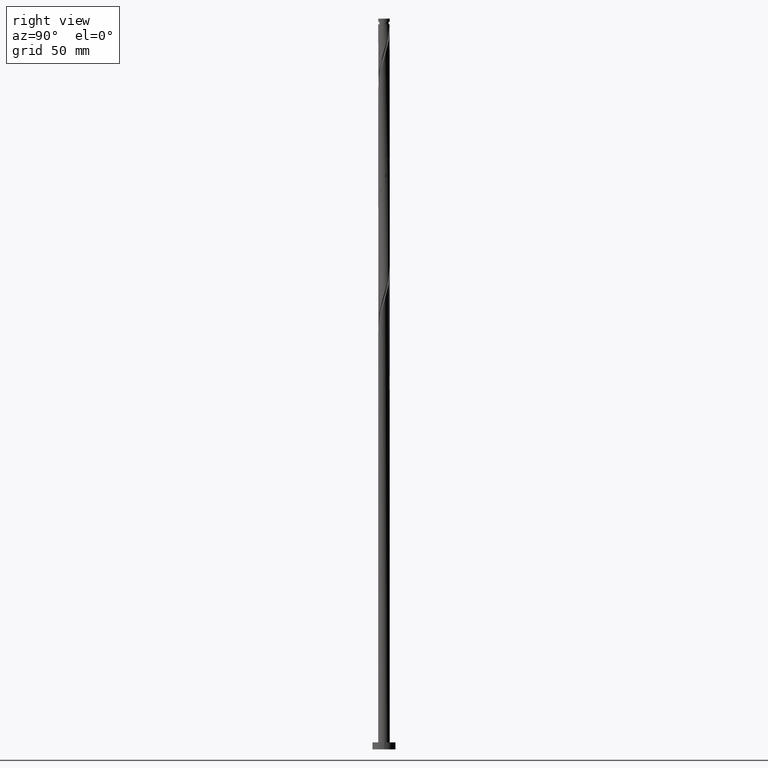
[diagram: clean part render]
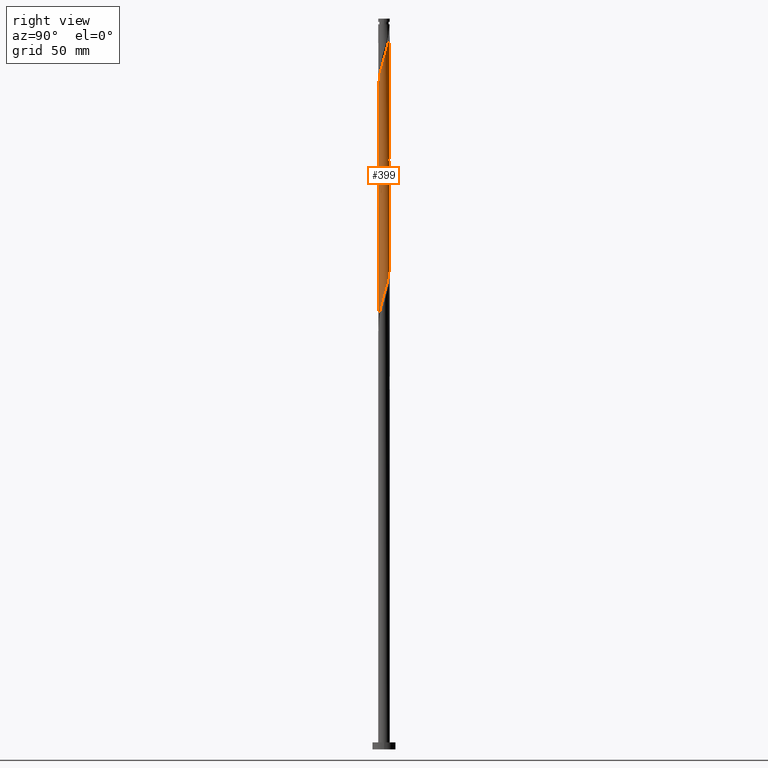
[diagram: same view with one face highlighted and labeled with its STEP entity id]
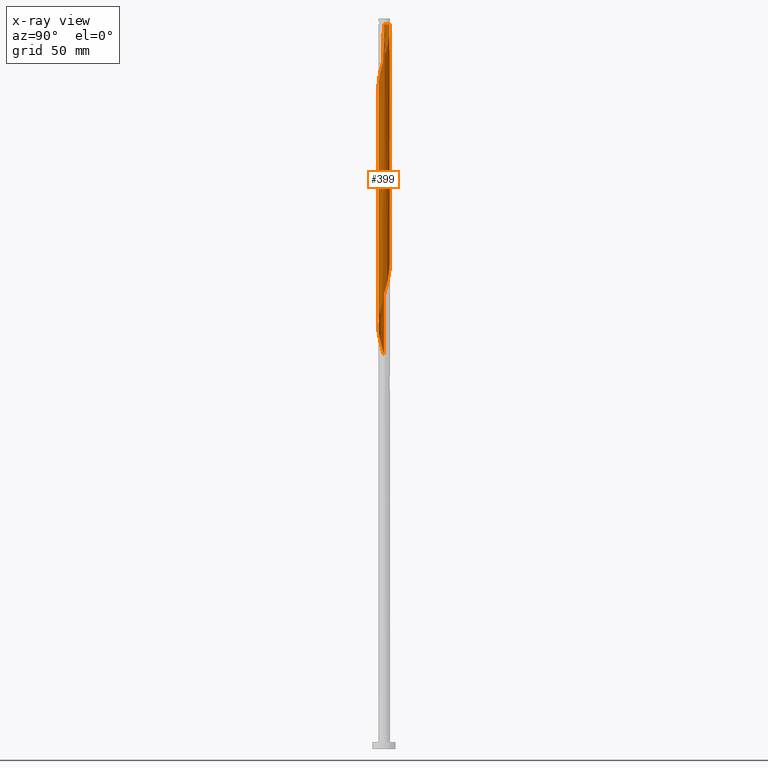
[diagram: x-ray of the same camera — body ghosted, the highlighted face saturated]
A machine part, right view. The second image highlights one B-rep face of the part: STEP entity #399.
The next image is the same camera in x-ray: the body ghosted, the highlighted face saturated — about 0% of this face is hidden behind the body in this view.
In plain terms, the highlighted cylindrical surface (bore or boss wall) has radius 2.5 mm, axis along (-0, -0, -1).
Its self-contained STEP definition (entity closure, byte-faithful):
#7 = CARTESIAN_POINT ( 'NONE',  ( 2.500000000000000000, 3.061616997868383141E-16, 315.0000000000000000 ) ) ;
#11 = CARTESIAN_POINT ( 'NONE',  ( -2.277870617955584098, 1.030196800545722269, 271.3546757170020669 ) ) ;
#25 = CARTESIAN_POINT ( 'NONE',  ( -2.500000000000004885, -6.231510445236996772E-16, 271.5551586390960779 ) ) ;
#33 = CARTESIAN_POINT ( 'NONE',  ( -0.8878210494104737949, 2.353958098689209244, 212.2921757170020669 ) ) ;
#42 = CARTESIAN_POINT ( 'NONE',  ( -0.7735424213085837497, -2.393945920148757622, 232.9171757170020385 ) ) ;
#44 = CARTESIAN_POINT ( 'NONE',  ( -2.500000000000004885, -0.2512594538148011369, 272.3934297180596786 ) ) ;
#55 = CARTESIAN_POINT ( 'NONE',  ( -1.138593763058828090, 2.225669392053441165, 213.2296757170021806 ) ) ;
#62 = ORIENTED_EDGE ( 'NONE', *, *, #1212, .F. ) ;
#67 = CARTESIAN_POINT ( 'NONE',  ( -0.3417565674784759922, 2.492498223619459718, 210.4171757170020669 ) ) ;
#70 = DIRECTION ( 'NONE',  ( -1.000000000000000000, 0.000000000000000000, 0.000000000000000000 ) ) ;
#79 = CARTESIAN_POINT ( 'NONE',  ( 1.138593763058827424, -2.225669392053441165, 186.9796757170021522 ) ) ;
#112 = CARTESIAN_POINT ( 'NONE',  ( 2.353958098689213241, -0.8878210494104763484, 294.7921757170020669 ) ) ;
#116 = VERTEX_POINT ( 'NONE', #341 ) ;
#133 = CARTESIAN_POINT ( 'NONE',  ( -1.991519291567517280, 1.511241513231559530, 269.4796757170022374 ) ) ;
#151 = CARTESIAN_POINT ( 'NONE',  ( 1.286851179782860566, 2.161795315762409242, 257.2921757170020669 ) ) ;
#157 = FACE_OUTER_BOUND ( 'NONE', #688, .T. ) ;
#163 = CARTESIAN_POINT ( 'NONE',  ( 2.449999999999998401, -0.4974937185533121475, 246.9796757170021522 ) ) ;
#168 = CYLINDRICAL_SURFACE ( 'NONE', #211, 2.500000000000000000 ) ;
#172 = CARTESIAN_POINT ( 'NONE',  ( 1.605304872039903019, -1.916506266048965568, 241.3546757170021806 ) ) ;
#179 = CARTESIAN_POINT ( 'NONE',  ( 0.2214450157980396849, 2.506054079851238736, 208.5421757170020385 ) ) ;
#181 = CARTESIAN_POINT ( 'NONE',  ( 0.2214450157980393796, -2.506054079851243621, 285.4171757170021237 ) ) ;
#183 = DIRECTION ( 'NONE',  ( -1.000000000000000000, 0.000000000000000000, 0.000000000000000000 ) ) ;
#188 = CARTESIAN_POINT ( 'NONE',  ( 2.277870617955583654, -1.030196800545722935, 192.6046757170021237 ) ) ;
#196 = CARTESIAN_POINT ( 'NONE',  ( -1.286851179782860566, -2.161795315762410130, 231.0421757170020953 ) ) ;
#198 = CARTESIAN_POINT ( 'NONE',  ( -2.500000000000000000, 0.000000000000000000, 315.0000000000000000 ) ) ;
#202 = ORIENTED_EDGE ( 'NONE', *, *, #1588, .F. ) ;
#207 = CARTESIAN_POINT ( 'NONE',  ( 1.389366476707181830, -2.097380685417672197, 187.9171757170020669 ) ) ;
#209 = DIRECTION ( 'NONE',  ( -0.000000000000000000, -0.000000000000000000, -1.000000000000000000 ) ) ;
#211 = AXIS2_PLACEMENT_3D ( 'NONE', #1432, #608, #183 ) ;
#217 = CARTESIAN_POINT ( 'NONE',  ( -1.030196800545722491, -2.277870617955583654, 179.4796757170021522 ) ) ;
#219 = CARTESIAN_POINT ( 'NONE',  ( -1.605304872039907016, -1.916506266048968454, 278.8546757170020669 ) ) ;
#225 = CARTESIAN_POINT ( 'NONE',  ( -2.499999999999999112, 1.682880964552041655E-15, 169.9041927949081980 ) ) ;
#233 = CARTESIAN_POINT ( 'NONE',  ( 1.735631846680259827, -1.821243267372628427, 291.0421757170021806 ) ) ;
#251 = CARTESIAN_POINT ( 'NONE',  ( 1.389366476707185605, 2.097380685417676194, 306.0421757170020669 ) ) ;
#259 = CARTESIAN_POINT ( 'NONE',  ( 1.138593763058830977, 2.225669392053444273, 306.9796757170021806 ) ) ;
#266 = CARTESIAN_POINT ( 'NONE',  ( 0.6147888084444749213, -2.423228161154335147, 237.6046757170022090 ) ) ;
#272 = DIRECTION ( 'NONE',  ( -0.000000000000000000, -0.000000000000000000, -1.000000000000000000 ) ) ;
#297 = CARTESIAN_POINT ( 'NONE',  ( -0.6147888084444751433, 2.423228161154335147, 263.8546757170021806 ) ) ;
#315 = CARTESIAN_POINT ( 'NONE',  ( 1.916506266048965568, 1.605304872039903019, 201.9796757170021237 ) ) ;
#323 = CARTESIAN_POINT ( 'NONE',  ( 2.449999999999998401, -0.4974937185533121475, 194.4796757170021806 ) ) ;
#325 = CARTESIAN_POINT ( 'NONE',  ( 0.4974937185533118145, -2.450000000000003730, 286.3546757170021806 ) ) ;
#331 = CARTESIAN_POINT ( 'NONE',  ( -2.097380685417672197, -1.389366476707181830, 227.2921757170020953 ) ) ;
#341 = CARTESIAN_POINT ( 'NONE',  ( -2.499999999999999556, 1.306005183133513461E-15, 274.9041927949081696 ) ) ;
#342 = CARTESIAN_POINT ( 'NONE',  ( 2.499276151735350116, 0.06015577584021770952, 196.3546757170021806 ) ) ;
#349 = CARTESIAN_POINT ( 'NONE',  ( -0.2214450157980399347, -2.506054079851238292, 182.2921757170020385 ) ) ;
#351 =( BOUNDED_CURVE ( )  B_SPLINE_CURVE ( 2, ( #832, #692, #1378, #1254, #11, #843, #133, #1534, #982, #1806, #404, #1671, #297, #1127, #1408, #1395, #1557, #555, #446, #151, #424, #1789, #975, #572, #1098, #1659, #1116, #416, #1681, #435, #1545 ),
 .UNSPECIFIED., .F., .T. ) 
 B_SPLINE_CURVE_WITH_KNOTS ( ( 3, 2, 2, 2, 2, 2, 2, 2, 2, 2, 2, 2, 2, 2, 2, 3 ),
 ( 0.4295303401299223056, 0.4375000000000000000, 0.4464285714285714524, 0.4553571428571428492, 0.4642857142857143016, 0.4732142857142856984, 0.4821428571428571508, 0.4910714285714285476, 0.5000000000000000000, 0.5089285714285713969, 0.5178571428571429047, 0.5267857142857143016, 0.5357142857142856984, 0.5446428571428570953, 0.5535714285714286031, 0.5545303401299219725 ),
 .UNSPECIFIED. ) 
 CURVE ( )  GEOMETRIC_REPRESENTATION_ITEM ( )  RATIONAL_B_SPLINE_CURVE ( ( 0.9079949616362208431, 0.9039886423360844470, 0.9090909090909509160, 0.9033747362666260106, 0.9090909090909509160, 0.9033747362666260106, 0.9090909090909509160, 0.9033747362666260106, 0.9090909090909509160, 0.9033747362666260106, 0.9090909090909509160, 0.9033747362666260106, 0.9090909090909509160, 0.9033747362666260106, 0.9090909090909509160, 0.9033747362666260106, 0.9090909090909509160, 0.9033747362666260106, 0.9090909090909509160, 0.9033747362666260106, 0.9090909090909509160, 0.9033747362666260106, 0.9090909090909509160, 0.9033747362666260106, 0.9090909090909509160, 0.9033747362666260106, 0.9090909090909509160, 0.9033747362666260106, 0.9090909090909509160, 0.9084770030214928127, 0.9079949616362212872 ) ) 
 REPRESENTATION_ITEM ( '' )  );
#363 = CARTESIAN_POINT ( 'NONE',  ( 2.277870617955588983, 1.030196800545723157, 301.3546757170020669 ) ) ;
#368 = EDGE_CURVE ( 'NONE', #1041, #116, #876, .T. ) ;
#385 = CARTESIAN_POINT ( 'NONE',  ( -1.735631846680257162, -1.821243267372623542, 176.6671757170020669 ) ) ;
#399 = ADVANCED_FACE ( 'NONE', ( #157 ), #168, .T. ) ;
#404 = CARTESIAN_POINT ( 'NONE',  ( -1.138593763058828090, 2.225669392053441165, 265.7296757170021806 ) ) ;
#407 =( BOUNDED_CURVE ( )  B_SPLINE_CURVE ( 2, ( #853, #965, #163, #720, #1692, #993, #862, #1416, #172, #730, #546, #1090, #266, #1289, #473, #1150, #1315, #42, #1137, #196, #756, #1010, #1305, #331, #871, #1020, #483, #881, #1703, #1163, #1595, #764, #900, #1586, #1039, #602, #1738, #889, #55, #33, #1722, #67, #1712, #179, #1449, #1425, #621, #1436, #613, #1029, #315, #454, #465, #1002, #1730, #1566, #342, #1576, #323, #1173, #188, #1461, #748, #1297, #739, #207, #79, #632, #1181, #490, #1603, #349, #909, #1472, #217, #1281, #589, #385, #1064, #535, #781, #1627, #1340, #1322, #654, #1057, #225 ),
 .UNSPECIFIED., .F., .T. ) 
 B_SPLINE_CURVE_WITH_KNOTS ( ( 3, 2, 2, 2, 2, 2, 2, 2, 2, 2, 2, 2, 2, 2, 2, 2, 2, 2, 2, 2, 2, 2, 2, 2, 2, 2, 2, 2, 2, 2, 2, 2, 2, 2, 2, 2, 2, 2, 2, 2, 2, 2, 2, 3 ),
 ( 0.5545303401299219725, 0.5625000000000000000, 0.5714285714285713969, 0.5803571428571429047, 0.5892857142857143016, 0.5982142857142856984, 0.6071428571428570953, 0.6160714285714286031, 0.6250000000000000000, 0.6339285714285713969, 0.6428571428571429047, 0.6517857142857143016, 0.6607142857142856984, 0.6696428571428570953, 0.6785714285714286031, 0.6875000000000000000, 0.6964285714285713969, 0.7053571428571429047, 0.7142857142857143016, 0.7232142857142856984, 0.7321428571428570953, 0.7410714285714286031, 0.7500000000000000000, 0.7589285714285713969, 0.7678571428571429047, 0.7767857142857143016, 0.7857142857142856984, 0.7946428571428570953, 0.8035714285714286031, 0.8125000000000000000, 0.8214285714285713969, 0.8303571428571429047, 0.8392857142857143016, 0.8482142857142856984, 0.8571428571428570953, 0.8660714285714286031, 0.8750000000000000000, 0.8839285714285713969, 0.8928571428571429047, 0.9017857142857143016, 0.9107142857142856984, 0.9196428571428569843, 0.9285714285714286031, 0.9295303401299221946 ),
 .UNSPECIFIED. ) 
 CURVE ( )  GEOMETRIC_REPRESENTATION_ITEM ( )  RATIONAL_B_SPLINE_CURVE ( ( 0.9079949616362212872, 0.9039886423360842249, 0.9090909090909509160, 0.9033747362666260106, 0.9090909090909509160, 0.9033747362666260106, 0.9090909090909509160, 0.9033747362666260106, 0.9090909090909509160, 0.9033747362666260106, 0.9090909090909509160, 0.9033747362666260106, 0.9090909090909509160, 0.9033747362666260106, 0.9090909090909509160, 0.9033747362666260106, 0.9090909090909509160, 0.9033747362666260106, 0.9090909090909509160, 0.9033747362666260106, 0.9090909090909509160, 0.9033747362666260106, 0.9090909090909509160, 0.9033747362666260106, 0.9090909090909509160, 0.9033747362666260106, 0.9090909090909509160, 0.9033747362666260106, 0.9090909090909509160, 0.9033747362666260106, 0.9090909090909509160, 0.9033747362666260106, 0.9090909090909509160, 0.9033747362666260106, 0.9090909090909509160, 0.9033747362666260106, 0.9090909090909509160, 0.9033747362666260106, 0.9090909090909509160, 0.9033747362666260106, 0.9090909090909509160, 0.9033747362666260106, 0.9090909090909509160, 0.9033747362666260106, 0.9090909090909509160, 0.9033747362666260106, 0.9090909090909509160, 0.9033747362666260106, 0.9090909090909509160, 0.9033747362666260106, 0.9090909090909509160, 0.9033747362666260106, 0.9090909090909509160, 0.9033747362666260106, 0.9090909090909509160, 0.9033747362666260106, 0.9090909090909509160, 0.9033747362666260106, 0.9090909090909509160, 0.9033747362666260106, 0.9090909090909509160, 0.9033747362666260106, 0.9090909090909509160, 0.9033747362666260106, 0.9090909090909509160, 0.9033747362666260106, 0.9090909090909509160, 0.9033747362666260106, 0.9090909090909509160, 0.9033747362666260106, 0.9090909090909509160, 0.9033747362666260106, 0.9090909090909509160, 0.9033747362666260106, 0.9090909090909509160, 0.9033747362666260106, 0.9090909090909509160, 0.9033747362666260106, 0.9090909090909509160, 0.9033747362666260106, 0.9090909090909509160, 0.9033747362666260106, 0.9090909090909509160, 0.9033747362666260106, 0.9090909090909509160, 0.9084770030214925907, 0.9079949616362208431 ) ) 
 REPRESENTATION_ITEM ( '' )  );
#416 = CARTESIAN_POINT ( 'NONE',  ( 2.492498223619459718, 0.3417565674784754925, 249.7921757170020385 ) ) ;
#421 = VERTEX_POINT ( 'NONE', #1420 ) ;
#424 = CARTESIAN_POINT ( 'NONE',  ( 1.511241513231559530, 1.991519291567517280, 256.3546757170021237 ) ) ;
#435 = CARTESIAN_POINT ( 'NONE',  ( 2.499999999999999112, 0.03008224291597762570, 248.7545554831332879 ) ) ;
#446 = CARTESIAN_POINT ( 'NONE',  ( 1.030196800545722935, 2.277870617955583210, 258.2296757170021237 ) ) ;
#454 = CARTESIAN_POINT ( 'NONE',  ( 2.097380685417672197, 1.389366476707181386, 201.0421757170020953 ) ) ;
#465 = CARTESIAN_POINT ( 'NONE',  ( 2.225669392053441165, 1.138593763058827424, 200.1046757170020953 ) ) ;
#473 = CARTESIAN_POINT ( 'NONE',  ( 0.06015577584021791768, -2.499276151735350116, 235.7296757170021806 ) ) ;
#483 = CARTESIAN_POINT ( 'NONE',  ( -2.423228161154335147, -0.6147888084444749213, 224.4796757170021522 ) ) ;
#490 = CARTESIAN_POINT ( 'NONE',  ( 0.3417565674784756591, -2.492498223619459718, 184.1671757170021237 ) ) ;
#493 = CARTESIAN_POINT ( 'NONE',  ( -1.821243267372628427, -1.735631846680259827, 277.9171757170020669 ) ) ;
#511 = CARTESIAN_POINT ( 'NONE',  ( 2.161795315762413683, 1.286851179782861676, 302.2921757170021237 ) ) ;
#535 = CARTESIAN_POINT ( 'NONE',  ( -2.097380685417672197, -1.389366476707181830, 174.7921757170020953 ) ) ;
#537 = CARTESIAN_POINT ( 'NONE',  ( 0.06015577584021940261, 2.499276151735354556, 310.7296757170021237 ) ) ;
#546 = CARTESIAN_POINT ( 'NONE',  ( 1.138593763058827424, -2.225669392053441165, 239.4796757170021237 ) ) ;
#555 = CARTESIAN_POINT ( 'NONE',  ( 0.7735424213085840828, 2.393945920148757622, 259.1671757170020101 ) ) ;
#572 = CARTESIAN_POINT ( 'NONE',  ( 2.097380685417672197, 1.389366476707181386, 253.5421757170020385 ) ) ;
#574 = ORIENTED_EDGE ( 'NONE', *, *, #1129, .T. ) ;
#578 = CARTESIAN_POINT ( 'NONE',  ( -2.500000000000000000, 0.000000000000000000, 315.0000000000000000 ) ) ;
#589 = CARTESIAN_POINT ( 'NONE',  ( -1.511241513231559530, -1.991519291567517280, 177.6046757170021522 ) ) ;
#602 = CARTESIAN_POINT ( 'NONE',  ( -1.821243267372623542, 1.735631846680256718, 216.0421757170020385 ) ) ;
#605 = LINE ( 'NONE', #198, #675 ) ;
#608 = DIRECTION ( 'NONE',  ( -0.000000000000000000, -0.000000000000000000, -1.000000000000000000 ) ) ;
#613 = CARTESIAN_POINT ( 'NONE',  ( 1.511241513231559530, 1.991519291567517280, 203.8546757170021522 ) ) ;
#621 = CARTESIAN_POINT ( 'NONE',  ( 1.030196800545722935, 2.277870617955583210, 205.7296757170021806 ) ) ;
#632 = CARTESIAN_POINT ( 'NONE',  ( 0.8878210494104736838, -2.353958098689209244, 186.0421757170020669 ) ) ;
#634 = CARTESIAN_POINT ( 'NONE',  ( -2.393945920148763395, -0.7735424213085844158, 274.1671757170021237 ) ) ;
#648 = CARTESIAN_POINT ( 'NONE',  ( 2.423228161154339588, -0.6147888084444771417, 295.7296757170020669 ) ) ;
#654 = CARTESIAN_POINT ( 'NONE',  ( -2.499276151735350116, -0.06015577584021802870, 170.1046757170021806 ) ) ;
#656 = CARTESIAN_POINT ( 'NONE',  ( 2.499276151735355000, -0.06015577584021924301, 297.6046757170021237 ) ) ;
#666 = CARTESIAN_POINT ( 'NONE',  ( 2.492498223619464159, -0.3417565674784776020, 296.6671757170020669 ) ) ;
#669 = ORIENTED_EDGE ( 'NONE', *, *, #1617, .F. ) ;
#675 = VECTOR ( 'NONE', #209, 1000.000000000000000 ) ;
#683 = CARTESIAN_POINT ( 'NONE',  ( 2.499999999999999112, -2.003785095264848080E-15, 248.6541927949081980 ) ) ;
#688 = EDGE_LOOP ( 'NONE', ( #1665, #574, #62, #1585, #669, #1433, #1404, #202 ) ) ;
#692 = CARTESIAN_POINT ( 'NONE',  ( -2.499999999999997335, 0.2512594538148131829, 274.0659217159445689 ) ) ;
#720 = CARTESIAN_POINT ( 'NONE',  ( 2.393945920148757622, -0.7735424213085839718, 246.0421757170019816 ) ) ;
#730 = CARTESIAN_POINT ( 'NONE',  ( 1.389366476707181830, -2.097380685417672197, 240.4171757170020385 ) ) ;
#739 = CARTESIAN_POINT ( 'NONE',  ( 1.605304872039903019, -1.916506266048965568, 188.8546757170021522 ) ) ;
#748 = CARTESIAN_POINT ( 'NONE',  ( 1.991519291567517280, -1.511241513231559530, 190.7296757170021522 ) ) ;
#756 = CARTESIAN_POINT ( 'NONE',  ( -1.511241513231559530, -1.991519291567517280, 230.1046757170021806 ) ) ;
#764 = CARTESIAN_POINT ( 'NONE',  ( -2.393945920148757622, 0.7735424213085836387, 219.7921757170020669 ) ) ;
#765 = AXIS2_PLACEMENT_3D ( 'NONE', #911, #1568, #70 ) ;
#774 = CARTESIAN_POINT ( 'NONE',  ( -1.138593763058830755, -2.225669392053444273, 280.7296757170021806 ) ) ;
#781 = CARTESIAN_POINT ( 'NONE',  ( -2.225669392053441165, -1.138593763058827424, 173.8546757170021522 ) ) ;
#817 = CARTESIAN_POINT ( 'NONE',  ( 0.3417565674784777130, 2.492498223619464159, 309.7921757170020669 ) ) ;
#821 = VERTEX_POINT ( 'NONE', #1584 ) ;
#832 = CARTESIAN_POINT ( 'NONE',  ( -2.499999999999999556, 1.306005183133513461E-15, 274.9041927949081696 ) ) ;
#843 = CARTESIAN_POINT ( 'NONE',  ( -2.161795315762410130, 1.286851179782860122, 270.4171757170020669 ) ) ;
#853 = CARTESIAN_POINT ( 'NONE',  ( 2.499999999999999112, -2.003785095264848080E-15, 248.6541927949081980 ) ) ;
#862 = CARTESIAN_POINT ( 'NONE',  ( 1.991519291567517280, -1.511241513231559530, 243.2296757170021522 ) ) ;
#871 = CARTESIAN_POINT ( 'NONE',  ( -2.225669392053441165, -1.138593763058827424, 226.3546757170021522 ) ) ;
#874 = CARTESIAN_POINT ( 'NONE',  ( -0.06015577584021904178, -2.499276151735355000, 284.4796757170020669 ) ) ;
#876 = LINE ( 'NONE', #578, #1578 ) ;
#881 = CARTESIAN_POINT ( 'NONE',  ( -2.492498223619459718, -0.3417565674784757146, 223.5421757170020669 ) ) ;
#884 = CARTESIAN_POINT ( 'NONE',  ( 0.7735424213085844158, -2.393945920148763840, 287.2921757170020101 ) ) ;
#889 = CARTESIAN_POINT ( 'NONE',  ( -1.389366476707182052, 2.097380685417672197, 214.1671757170020669 ) ) ;
#891 = CARTESIAN_POINT ( 'NONE',  ( -2.499999999999973799, 0.000000000000000000, 312.6046757170021237 ) ) ;
#900 = CARTESIAN_POINT ( 'NONE',  ( -2.277870617955584098, 1.030196800545722269, 218.8546757170021522 ) ) ;
#909 = CARTESIAN_POINT ( 'NONE',  ( -0.4974937185533120365, -2.449999999999998401, 181.3546757170021522 ) ) ;
#911 = CARTESIAN_POINT ( 'NONE',  ( 0.000000000000000000, 0.000000000000000000, 312.6046757170021237 ) ) ;
#914 = EDGE_CURVE ( 'NONE', #1554, #1310, #1261, .T. ) ;
#919 = CARTESIAN_POINT ( 'NONE',  ( 1.991519291567521721, 1.511241513231561084, 303.2296757170021237 ) ) ;
#946 = CARTESIAN_POINT ( 'NONE',  ( 1.821243267372628427, 1.735631846680259605, 304.1671757170021237 ) ) ;
#965 = CARTESIAN_POINT ( 'NONE',  ( 2.499999999999999112, -0.2512594538148016365, 247.8159217159445404 ) ) ;
#975 = CARTESIAN_POINT ( 'NONE',  ( 1.916506266048965568, 1.605304872039903019, 254.4796757170021522 ) ) ;
#982 = CARTESIAN_POINT ( 'NONE',  ( -1.605304872039903463, 1.916506266048965124, 267.6046757170021237 ) ) ;
#988 = DIRECTION ( 'NONE',  ( -0.000000000000000000, -0.000000000000000000, -1.000000000000000000 ) ) ;
#993 = CARTESIAN_POINT ( 'NONE',  ( 2.161795315762409242, -1.286851179782860566, 244.1671757170020953 ) ) ;
#1002 = CARTESIAN_POINT ( 'NONE',  ( 2.353958098689208356, 0.8878210494104733508, 199.1671757170020101 ) ) ;
#1004 = CARTESIAN_POINT ( 'NONE',  ( -0.3417565674784773799, -2.492498223619464603, 283.5421757170020669 ) ) ;
#1006 = EDGE_CURVE ( 'NONE', #1571, #821, #605, .T. ) ;
#1010 = CARTESIAN_POINT ( 'NONE',  ( -1.735631846680257162, -1.821243267372623542, 229.1671757170020385 ) ) ;
#1013 = CARTESIAN_POINT ( 'NONE',  ( -2.500000000000004885, -6.231510445236996772E-16, 271.5551586390960779 ) ) ;
#1016 = VECTOR ( 'NONE', #272, 1000.000000000000000 ) ;
#1020 = CARTESIAN_POINT ( 'NONE',  ( -2.353958098689209244, -0.8878210494104736838, 225.4171757170020385 ) ) ;
#1029 = CARTESIAN_POINT ( 'NONE',  ( 1.735631846680257384, 1.821243267372623098, 202.9171757170020385 ) ) ;
#1039 = CARTESIAN_POINT ( 'NONE',  ( -1.991519291567517280, 1.511241513231559530, 216.9796757170021237 ) ) ;
#1041 = VERTEX_POINT ( 'NONE', #891 ) ;
#1050 = CARTESIAN_POINT ( 'NONE',  ( 1.511241513231561528, -1.991519291567521277, 290.1046757170021237 ) ) ;
#1057 = CARTESIAN_POINT ( 'NONE',  ( -2.499999999999999556, -0.03008224291597098518, 170.0045554831332879 ) ) ;
#1060 = CARTESIAN_POINT ( 'NONE',  ( 2.097380685417676194, -1.389366476707185605, 292.9171757170020101 ) ) ;
#1064 = CARTESIAN_POINT ( 'NONE',  ( -1.916506266048965124, -1.605304872039903019, 175.7296757170021522 ) ) ;
#1066 = CARTESIAN_POINT ( 'NONE',  ( 1.286851179782861676, -2.161795315762413683, 289.1671757170020669 ) ) ;
#1090 = CARTESIAN_POINT ( 'NONE',  ( 0.8878210494104736838, -2.353958098689209244, 238.5421757170020385 ) ) ;
#1097 =( BOUNDED_CURVE ( )  B_SPLINE_CURVE ( 2, ( #1013, #44, #1317, #634, #1184, #1152, #1741, #493, #219, #1428, #774, #1325, #1747, #1004, #874, #181, #325, #884, #1351, #1066, #1050, #233, #1771, #1060, #1201, #112, #648, #666, #656, #1629, #1503, #1333, #363, #511, #919, #946, #1480, #251, #259, #1756, #1762, #817, #537, #1488, #1342 ),
 .UNSPECIFIED., .F., .T. ) 
 B_SPLINE_CURVE_WITH_KNOTS ( ( 3, 2, 2, 2, 2, 2, 2, 2, 2, 2, 2, 2, 2, 2, 2, 2, 2, 2, 2, 2, 2, 2, 3 ),
 ( 0.5545303401299219725, 0.5625000000000000000, 0.5714285714285713969, 0.5803571428571427937, 0.5892857142857143016, 0.5982142857142856984, 0.6071428571428572063, 0.6160714285714286031, 0.6250000000000000000, 0.6339285714285713969, 0.6428571428571427937, 0.6517857142857144126, 0.6607142857142858094, 0.6696428571428573173, 0.6785714285714287142, 0.6875000000000001110, 0.6964285714285715079, 0.7053571428571429047, 0.7142857142857144126, 0.7232142857142858094, 0.7321428571428573173, 0.7410714285714287142, 0.7500000000000001110 ),
 .UNSPECIFIED. ) 
 CURVE ( )  GEOMETRIC_REPRESENTATION_ITEM ( )  RATIONAL_B_SPLINE_CURVE ( ( 0.9079949616362288367, 0.9039886423360918855, 0.9090909090909586876, 0.9033747362666336711, 0.9090909090909586876, 0.9033747362666336711, 0.9090909090909586876, 0.9033747362666336711, 0.9090909090909586876, 0.9033747362666336711, 0.9090909090909586876, 0.9033747362666336711, 0.9090909090909586876, 0.9033747362666336711, 0.9090909090909586876, 0.9033747362666336711, 0.9090909090909586876, 0.9033747362666336711, 0.9090909090909586876, 0.9033747362666336711, 0.9090909090909586876, 0.9033747362666336711, 0.9090909090909586876, 0.9033747362666336711, 0.9090909090909586876, 0.9033747362666336711, 0.9090909090909586876, 0.9033747362666336711, 0.9090909090909586876, 0.9033747362666336711, 0.9090909090909586876, 0.9033747362666336711, 0.9090909090909586876, 0.9033747362666336711, 0.9090909090909586876, 0.9033747362666336711, 0.9090909090909586876, 0.9033747362666336711, 0.9090909090909586876, 0.9033747362666336711, 0.9090909090909586876, 0.9033747362666336711, 0.9090909090909586876, 0.9033747362666335601, 0.9090909090909587986 ) ) 
 REPRESENTATION_ITEM ( '' )  );
#1098 = CARTESIAN_POINT ( 'NONE',  ( 2.225669392053441165, 1.138593763058827424, 252.6046757170021806 ) ) ;
#1116 = CARTESIAN_POINT ( 'NONE',  ( 2.423228161154336036, 0.6147888084444746992, 250.7296757170021522 ) ) ;
#1127 = CARTESIAN_POINT ( 'NONE',  ( -0.3417565674784759922, 2.492498223619459718, 262.9171757170020669 ) ) ;
#1129 = EDGE_CURVE ( 'NONE', #1041, #421, #1608, .T. ) ;
#1137 = CARTESIAN_POINT ( 'NONE',  ( -1.030196800545722491, -2.277870617955583654, 231.9796757170021237 ) ) ;
#1150 = CARTESIAN_POINT ( 'NONE',  ( -0.2214450157980399347, -2.506054079851238292, 234.7921757170020385 ) ) ;
#1152 = CARTESIAN_POINT ( 'NONE',  ( -2.161795315762413683, -1.286851179782861898, 276.0421757170021237 ) ) ;
#1163 = CARTESIAN_POINT ( 'NONE',  ( -2.506054079851238736, 0.2214450157980397682, 221.6671757170020385 ) ) ;
#1173 = CARTESIAN_POINT ( 'NONE',  ( 2.393945920148757622, -0.7735424213085839718, 193.5421757170020101 ) ) ;
#1181 = CARTESIAN_POINT ( 'NONE',  ( 0.6147888084444749213, -2.423228161154335147, 185.1046757170021522 ) ) ;
#1184 = CARTESIAN_POINT ( 'NONE',  ( -2.277870617955588983, -1.030196800545723379, 275.1046757170022374 ) ) ;
#1201 = CARTESIAN_POINT ( 'NONE',  ( 2.225669392053444273, -1.138593763058830977, 293.8546757170021806 ) ) ;
#1212 = EDGE_CURVE ( 'NONE', #1571, #421, #1097, .T. ) ;
#1254 = CARTESIAN_POINT ( 'NONE',  ( -2.393945920148757622, 0.7735424213085836387, 272.2921757170020101 ) ) ;
#1261 = LINE ( 'NONE', #7, #1016 ) ;
#1264 = CARTESIAN_POINT ( 'NONE',  ( 2.500000000000000000, 3.061616997868383141E-16, 312.6046757170021237 ) ) ;
#1281 = CARTESIAN_POINT ( 'NONE',  ( -1.286851179782860566, -2.161795315762410130, 178.5421757170020953 ) ) ;
#1289 = CARTESIAN_POINT ( 'NONE',  ( 0.3417565674784756591, -2.492498223619459718, 236.6671757170020669 ) ) ;
#1297 = CARTESIAN_POINT ( 'NONE',  ( 1.821243267372623542, -1.735631846680257162, 189.7921757170021237 ) ) ;
#1305 = CARTESIAN_POINT ( 'NONE',  ( -1.916506266048965124, -1.605304872039903019, 228.2296757170021522 ) ) ;
#1310 = VERTEX_POINT ( 'NONE', #683 ) ;
#1315 = CARTESIAN_POINT ( 'NONE',  ( -0.4974937185533120365, -2.449999999999998401, 233.8546757170021522 ) ) ;
#1317 = CARTESIAN_POINT ( 'NONE',  ( -2.450000000000003730, -0.4974937185533121475, 273.2296757170020669 ) ) ;
#1322 = CARTESIAN_POINT ( 'NONE',  ( -2.492498223619459718, -0.3417565674784757146, 171.0421757170020669 ) ) ;
#1325 = CARTESIAN_POINT ( 'NONE',  ( -0.8878210494104763484, -2.353958098689213241, 281.6671757170020101 ) ) ;
#1333 = CARTESIAN_POINT ( 'NONE',  ( 2.393945920148763840, 0.7735424213085844158, 300.4171757170021806 ) ) ;
#1340 = CARTESIAN_POINT ( 'NONE',  ( -2.423228161154335147, -0.6147888084444749213, 171.9796757170021522 ) ) ;
#1342 = CARTESIAN_POINT ( 'NONE',  ( -0.4974937185533762074, 2.450000000000750688, 312.6046757170019532 ) ) ;
#1351 = CARTESIAN_POINT ( 'NONE',  ( 1.030196800545723157, -2.277870617955588983, 288.2296757170021806 ) ) ;
#1378 = CARTESIAN_POINT ( 'NONE',  ( -2.449999999999998401, 0.4974937185533118145, 273.2296757170021806 ) ) ;
#1395 = CARTESIAN_POINT ( 'NONE',  ( 0.2214450157980396849, 2.506054079851238736, 261.0421757170020101 ) ) ;
#1404 = ORIENTED_EDGE ( 'NONE', *, *, #914, .T. ) ;
#1408 = CARTESIAN_POINT ( 'NONE',  ( -0.06015577584021813279, 2.499276151735350116, 261.9796757170021237 ) ) ;
#1416 = CARTESIAN_POINT ( 'NONE',  ( 1.821243267372623542, -1.735631846680257162, 242.2921757170020669 ) ) ;
#1420 = CARTESIAN_POINT ( 'NONE',  ( -0.4974937185533762074, 2.450000000000750688, 312.6046757170019532 ) ) ;
#1425 = CARTESIAN_POINT ( 'NONE',  ( 0.7735424213085840828, 2.393945920148757622, 206.6671757170021237 ) ) ;
#1428 = CARTESIAN_POINT ( 'NONE',  ( -1.389366476707185161, -2.097380685417676194, 279.7921757170020669 ) ) ;
#1432 = CARTESIAN_POINT ( 'NONE',  ( 0.000000000000000000, 0.000000000000000000, 315.0000000000000000 ) ) ;
#1433 = ORIENTED_EDGE ( 'NONE', *, *, #914, .F. ) ;
#1436 = CARTESIAN_POINT ( 'NONE',  ( 1.286851179782860566, 2.161795315762409242, 204.7921757170020385 ) ) ;
#1449 = CARTESIAN_POINT ( 'NONE',  ( 0.4974937185533123141, 2.449999999999998401, 207.6046757170022090 ) ) ;
#1461 = CARTESIAN_POINT ( 'NONE',  ( 2.161795315762409242, -1.286851179782860566, 191.6671757170020953 ) ) ;
#1472 = CARTESIAN_POINT ( 'NONE',  ( -0.7735424213085837497, -2.393945920148757622, 180.4171757170021237 ) ) ;
#1480 = CARTESIAN_POINT ( 'NONE',  ( 1.605304872039907016, 1.916506266048968010, 305.1046757170020669 ) ) ;
#1488 = CARTESIAN_POINT ( 'NONE',  ( -0.2214450157980426270, 2.506054079851244509, 311.6671757170021237 ) ) ;
#1503 = CARTESIAN_POINT ( 'NONE',  ( 2.450000000000003730, 0.4974937185533118145, 299.4796757170021237 ) ) ;
#1534 = CARTESIAN_POINT ( 'NONE',  ( -1.821243267372623542, 1.735631846680256718, 268.5421757170020669 ) ) ;
#1545 = CARTESIAN_POINT ( 'NONE',  ( 2.499999999999999112, -2.003785095264848080E-15, 248.6541927949081980 ) ) ;
#1554 = VERTEX_POINT ( 'NONE', #1264 ) ;
#1557 = CARTESIAN_POINT ( 'NONE',  ( 0.4974937185533123141, 2.449999999999998401, 260.1046757170021806 ) ) ;
#1566 = CARTESIAN_POINT ( 'NONE',  ( 2.492498223619459718, 0.3417565674784754925, 197.2921757170020953 ) ) ;
#1568 = DIRECTION ( 'NONE',  ( -0.000000000000000000, -0.000000000000000000, -1.000000000000000000 ) ) ;
#1571 = VERTEX_POINT ( 'NONE', #25 ) ;
#1576 = CARTESIAN_POINT ( 'NONE',  ( 2.506054079851238292, -0.2214450157980401290, 195.4171757170020953 ) ) ;
#1578 = VECTOR ( 'NONE', #988, 1000.000000000000000 ) ;
#1584 = CARTESIAN_POINT ( 'NONE',  ( -2.499999999999999112, 1.682880964552041655E-15, 169.9041927949081980 ) ) ;
#1585 = ORIENTED_EDGE ( 'NONE', *, *, #1006, .T. ) ;
#1586 = CARTESIAN_POINT ( 'NONE',  ( -2.161795315762410130, 1.286851179782860122, 217.9171757170020953 ) ) ;
#1588 = EDGE_CURVE ( 'NONE', #116, #1310, #351, .T. ) ;
#1595 = CARTESIAN_POINT ( 'NONE',  ( -2.449999999999998401, 0.4974937185533118145, 220.7296757170021806 ) ) ;
#1603 = CARTESIAN_POINT ( 'NONE',  ( 0.06015577584021791768, -2.499276151735350116, 183.2296757170021522 ) ) ;
#1608 = CIRCLE ( 'NONE', #765, 2.499999999999973799 ) ;
#1617 = EDGE_CURVE ( 'NONE', #1310, #821, #407, .T. ) ;
#1627 = CARTESIAN_POINT ( 'NONE',  ( -2.353958098689209244, -0.8878210494104736838, 172.9171757170020953 ) ) ;
#1629 = CARTESIAN_POINT ( 'NONE',  ( 2.506054079851243621, 0.2214450157980391853, 298.5421757170021237 ) ) ;
#1659 = CARTESIAN_POINT ( 'NONE',  ( 2.353958098689208356, 0.8878210494104733508, 251.6671757170020385 ) ) ;
#1665 = ORIENTED_EDGE ( 'NONE', *, *, #368, .F. ) ;
#1671 = CARTESIAN_POINT ( 'NONE',  ( -0.8878210494104737949, 2.353958098689209244, 264.7921757170020101 ) ) ;
#1681 = CARTESIAN_POINT ( 'NONE',  ( 2.499276151735350116, 0.06015577584021770952, 248.8546757170021522 ) ) ;
#1692 = CARTESIAN_POINT ( 'NONE',  ( 2.277870617955583654, -1.030196800545722935, 245.1046757170021806 ) ) ;
#1703 = CARTESIAN_POINT ( 'NONE',  ( -2.499276151735350116, -0.06015577584021802870, 222.6046757170021237 ) ) ;
#1712 = CARTESIAN_POINT ( 'NONE',  ( -0.06015577584021813279, 2.499276151735350116, 209.4796757170021237 ) ) ;
#1722 = CARTESIAN_POINT ( 'NONE',  ( -0.6147888084444751433, 2.423228161154335147, 211.3546757170021806 ) ) ;
#1730 = CARTESIAN_POINT ( 'NONE',  ( 2.423228161154336036, 0.6147888084444746992, 198.2296757170021522 ) ) ;
#1738 = CARTESIAN_POINT ( 'NONE',  ( -1.605304872039903463, 1.916506266048965124, 215.1046757170020953 ) ) ;
#1741 = CARTESIAN_POINT ( 'NONE',  ( -1.991519291567521277, -1.511241513231561528, 276.9796757170021237 ) ) ;
#1747 = CARTESIAN_POINT ( 'NONE',  ( -0.6147888084444770307, -2.423228161154339588, 282.6046757170021237 ) ) ;
#1756 = CARTESIAN_POINT ( 'NONE',  ( 0.8878210494104767925, 2.353958098689212797, 307.9171757170020669 ) ) ;
#1762 = CARTESIAN_POINT ( 'NONE',  ( 0.6147888084444771417, 2.423228161154339588, 308.8546757170021806 ) ) ;
#1771 = CARTESIAN_POINT ( 'NONE',  ( 1.916506266048968010, -1.605304872039907016, 291.9796757170021806 ) ) ;
#1789 = CARTESIAN_POINT ( 'NONE',  ( 1.735631846680257384, 1.821243267372623098, 255.4171757170020385 ) ) ;
#1806 = CARTESIAN_POINT ( 'NONE',  ( -1.389366476707182052, 2.097380685417672197, 266.6671757170020669 ) ) ;